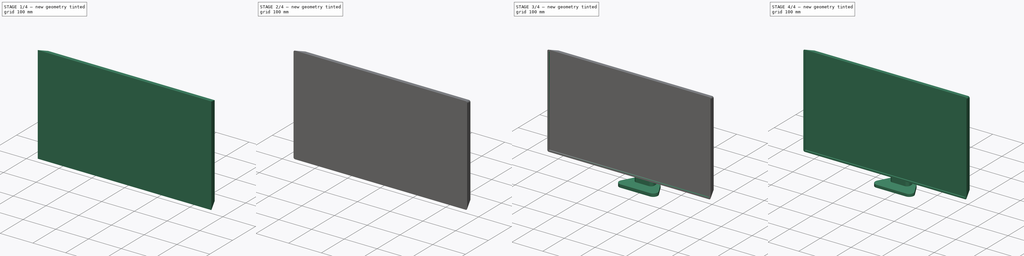
[diagram: build sequence overview — one tinted view per stage of 4, left to right]
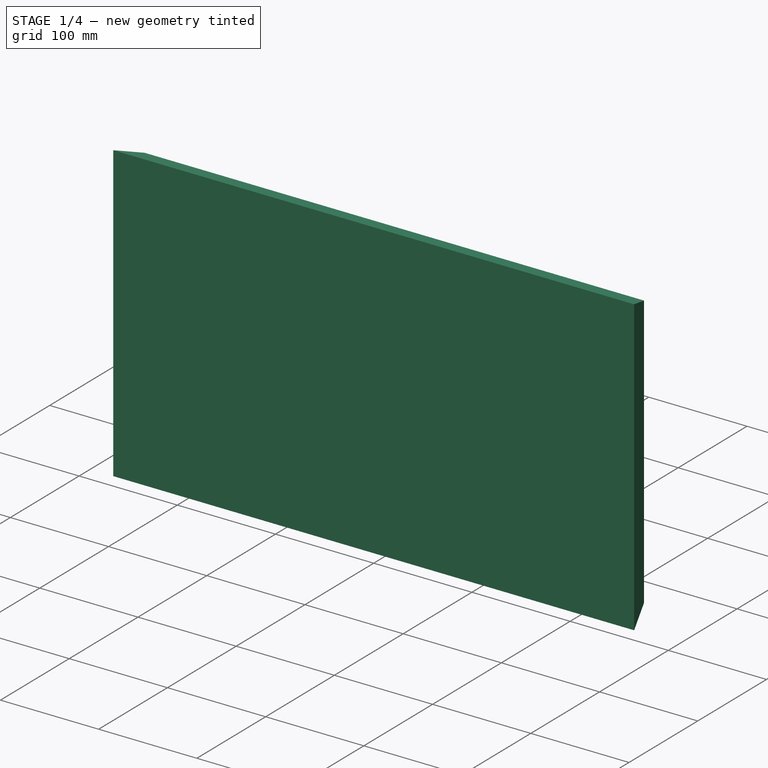
[diagram: stage 1 of 4 — iso view after this stage's code; geometry added in this stage tinted green]
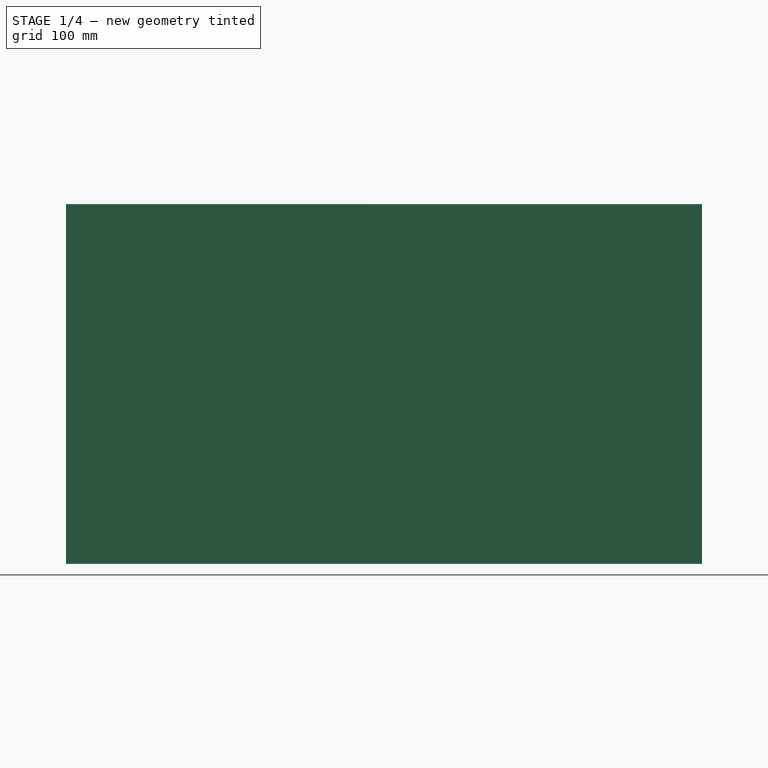
[diagram: stage 1 of 4 — front view after this stage's code; geometry added in this stage tinted green]
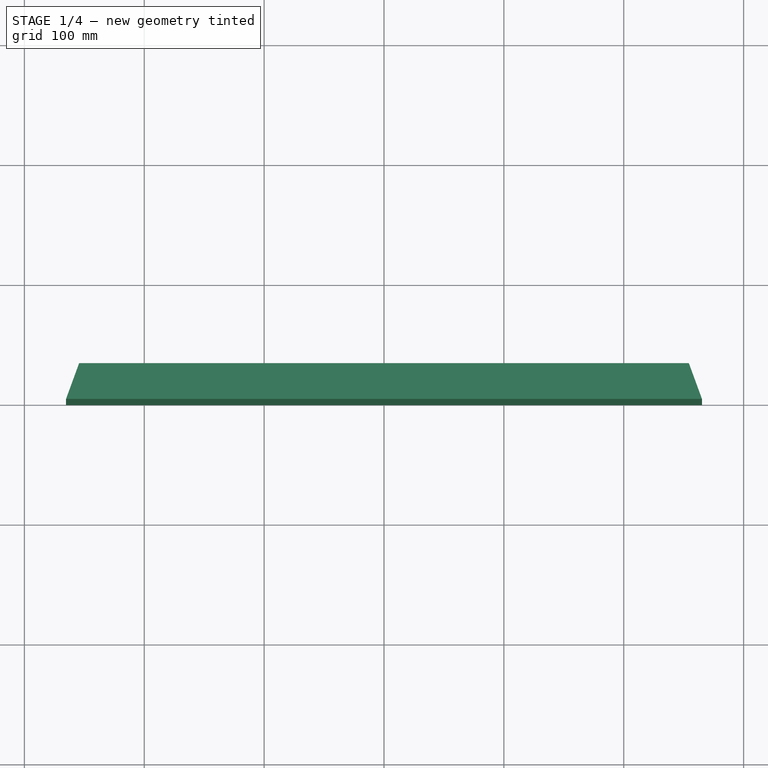
[diagram: stage 1 of 4 — top view after this stage's code; geometry added in this stage tinted green]
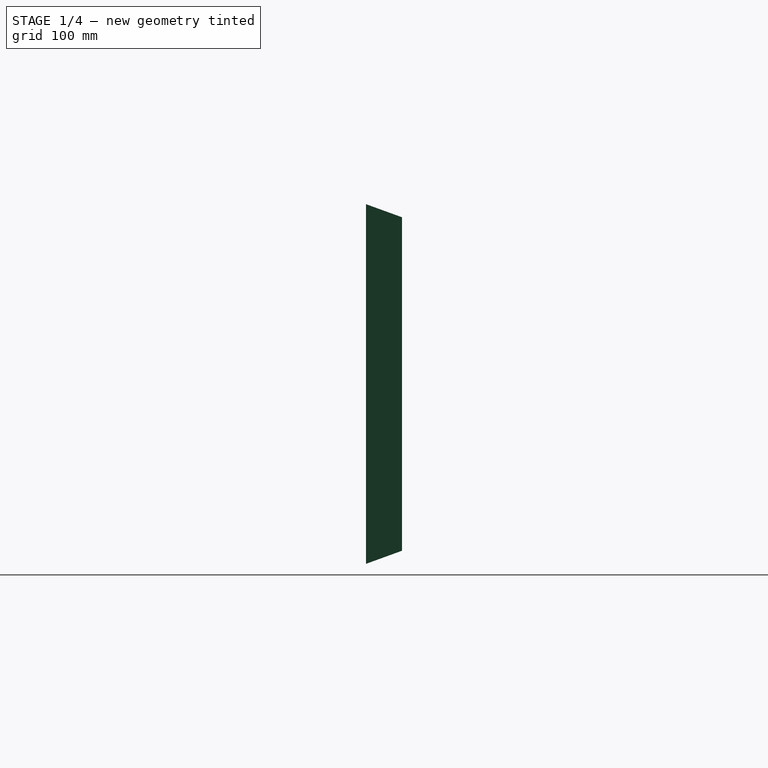
[diagram: stage 1 of 4 — right view after this stage's code; geometry added in this stage tinted green]
FCSTD DOCUMENT  (FreeCAD 1.0R39109 (Git))
Label: moniter
License: All rights reserved
LicenseURL: https://en.wikipedia.org/wiki/All_rights_reserved
objects: Sketcher::SketchObject×8, PartDesign::Pad×6, PartDesign::Body×3, PartDesign::Fillet×2, PartDesign::Pocket×2, PartDesign::ShapeBinder×2, Part::FeaturePython×2, Part::Fuse×1, App::Part×1
note: 54 computed .brp shape members not serialized (recipe doc carries the construction recipe); baked Part::Feature solids carry a one-line shape summary decoded from their .brp

FEATURE [Sketcher::SketchObject] Sketch001
  ArcFitTolerance = 1e-06
  AttachmentSupport = -> [Pad]
  FullyConstrained = false
  MakeInternals = false
  MapMode = 5
  Placement = pos=(0,0,10) rot=(0,0,1;0rad)
  sketch-geometry (10):
    g0: LineSegment StartX=-30.568 StartY=79.6606 StartZ=0 EndX=-30.568 EndY=73.3721 EndZ=0
    g1: LineSegment StartX=-20.568 StartY=63.3721 StartZ=0 EndX=20.568 EndY=63.3721 EndZ=0
    g2: LineSegment StartX=30.568 StartY=73.3721 StartZ=0 EndX=30.568 EndY=79.6619 EndZ=0
    g3: ArcOfCircle CenterX=0.00125496 CenterY=43.2656 CenterZ=0 NormalX=0 NormalY=0 NormalZ=1 AngleXU=0 Radius=52.8585 StartAngle=1.09908 EndAngle=2.04258
    g4: ArcOfCircle CenterX=-18.568 CenterY=79.6606 CenterZ=0 NormalX=0 NormalY=0 NormalZ=1 AngleXU=0 Radius=12 StartAngle=2.04258 EndAngle=3.14159
    g5: ArcOfCircle CenterX=18.568 CenterY=79.6619 CenterZ=0 NormalX=0 NormalY=0 NormalZ=1 AngleXU=0 Radius=12 StartAngle=1e-16 EndAngle=1.09908
    g6: ArcOfCircle CenterX=20.568 CenterY=73.3721 CenterZ=0 NormalX=0 NormalY=0 NormalZ=1 AngleXU=0 Radius=10 StartAngle=4.71239 EndAngle=6.28319
    g7: GeomPoint [constr] X=30.568 Y=63.3721 Z=0
    g8: ArcOfCircle CenterX=-20.568 CenterY=73.3721 CenterZ=0 NormalX=0 NormalY=0 NormalZ=1 AngleXU=0 Radius=10 StartAngle=3.14159 EndAngle=4.71239
    g9: GeomPoint [constr] X=-30.568 Y=63.3721 Z=0
  constraints (19):
    c: Vertical(g0)
    c: Vertical(g2)
    c: Symmetric(g9,g7,g-2)
    c: Tangent(g3,g4) = -1.5708
    c: Tangent(g0,g4) = -1.5708
    c: Tangent(g3,g5) = -1.5708
    c: Tangent(g2,g5) = -1.5708
    c: PointOnObject(g7,g2)
    c: PointOnObject(g7,g1)
    c: Tangent(g2,g6) = -1.5708
    c: Tangent(g1,g6) = -1.5708
    c: PointOnObject(g9,g0)
    c: PointOnObject(g9,g1)
    c: Tangent(g0,g8) = -1.5708
    c: Tangent(g1,g8) = -1.5708
    c: Equal(g8,g6)
    c: Equal(g5,g4)
    c: Radius(g8) = 10
    c: Radius(g4) = 12
FEATURE [Sketcher::SketchObject] Sketch002
  ArcFitTolerance = 1e-06
  AttachmentSupport = -> [XZ_Plane001]
  FullyConstrained = false
  MakeInternals = false
  MapMode = 5
  Placement = pos=(0,0,0) rot=(1,0,0;1.5708rad)
  sketch-geometry (4):
    g0: LineSegment StartX=-265.2 StartY=359.744 StartZ=0 EndX=-265.2 EndY=59.7441 EndZ=0
    g1: LineSegment StartX=-265.2 StartY=59.7441 StartZ=0 EndX=265.2 EndY=59.7441 EndZ=0
    g2: LineSegment StartX=265.2 StartY=59.7441 StartZ=0 EndX=265.2 EndY=359.744 EndZ=0
    g3: LineSegment StartX=265.2 StartY=359.744 StartZ=0 EndX=-265.2 EndY=359.744 EndZ=0
  constraints (10):
    c: Coincident(g0,g1)
    c: Coincident(g1,g2)
    c: Coincident(g2,g3)
    c: Coincident(g3,g0)
    c: Vertical(g0)
    c: Vertical(g2)
    c: Horizontal(g1)
    c: Distance(g0,g2) = 530.4
    c: Distance(g1,g3) = 300
    c: Symmetric(g2,g0,g-2)
FEATURE [PartDesign::Pad] Pad002
  Direction = (0,-1,2e-16)
  Length = 30
  Length2 = 10
  Placement = pos=(0,0,0) rot=(1,0,0;1.5708rad)
  Profile = -> Sketch002
  ReferenceAxis = -> Sketch002 [N_Axis]
  Refine = true
  Reversed = true
  Suppressed = false
  TaperAngle = -20
  Type = 0
FEATURE [PartDesign::ShapeBinder] CopyPocket001
  Placement = pos=(0,5,-2e-15) rot=(0,0,1;0rad)
  TraceSupport = false
FEATURE [Sketcher::SketchObject] Sketch007
  ArcFitTolerance = 1e-06
  AttachmentSupport = -> [CopyPocket001]
  ExternalGeometry = -> [CopyPocket001]
  FullyConstrained = true
  MakeInternals = false
  MapMode = 5
  Placement = pos=(0,5,-2e-15) rot=(1,0,0;1.5708rad)
  sketch-geometry (4):
    g0: LineSegment StartX=-260.502 StartY=355.046 StartZ=0 EndX=-260.502 EndY=64.4426 EndZ=0
    g1: LineSegment StartX=-260.502 StartY=64.4426 StartZ=0 EndX=260.502 EndY=64.4426 EndZ=0
    g2: LineSegment StartX=260.502 StartY=64.4426 StartZ=0 EndX=260.502 EndY=355.046 EndZ=0
    g3: LineSegment StartX=260.502 StartY=355.046 StartZ=0 EndX=-260.502 EndY=355.046 EndZ=0
  constraints (10):
    c: Coincident(g0,g1)
    c: Coincident(g1,g2)
    c: Coincident(g2,g3)
    c: Coincident(g3,g0)
    c: Vertical(g0)
    c: Vertical(g2)
    c: Horizontal(g1)
    c: Horizontal(g3)
    c: Coincident(g0,g-3)
    c: Coincident(g1,g-4)
FEATURE [PartDesign::Pad] Pad005
  Direction = (0,-1,2e-16)
  Length = 1
  Length2 = 10
  Placement = pos=(0,5,-2e-15) rot=(0,0,1;0rad)
  Profile = -> Sketch007
  ReferenceAxis = -> Sketch007 [N_Axis]
  Refine = true
  Suppressed = false
  Type = 0
FEATURE [Part::FeaturePython] Clone001  label="moniter_screen_clone"  # Draft clone (typed FeaturePython)
  AttacherType = Attacher::AttachEngine3D
  Fuse = false
  Objects = -> [Body002]
  Scale = (1,1,1)
FEATURE [App::Part] Part  label="moniter"
  Group = -> [Clone,Clone001]
  Origin = -> Origin004
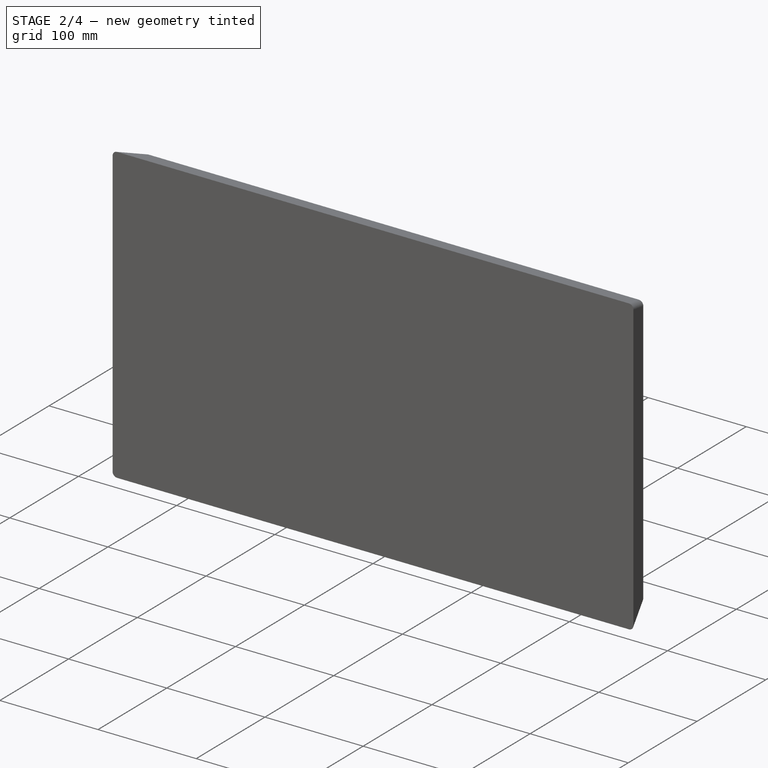
[diagram: stage 2 of 4 — iso view after this stage's code; geometry added in this stage tinted green]
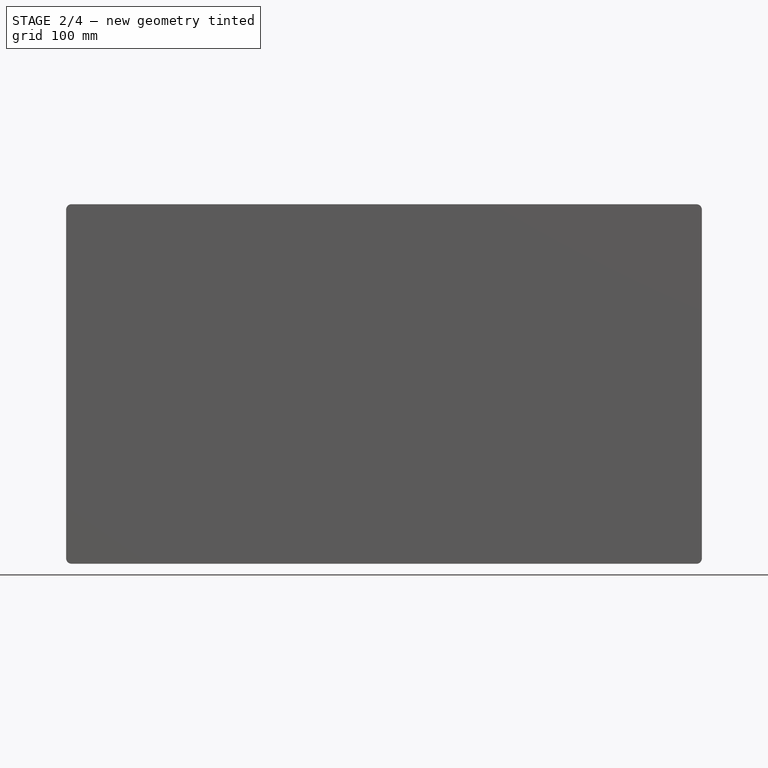
[diagram: stage 2 of 4 — front view after this stage's code; geometry added in this stage tinted green]
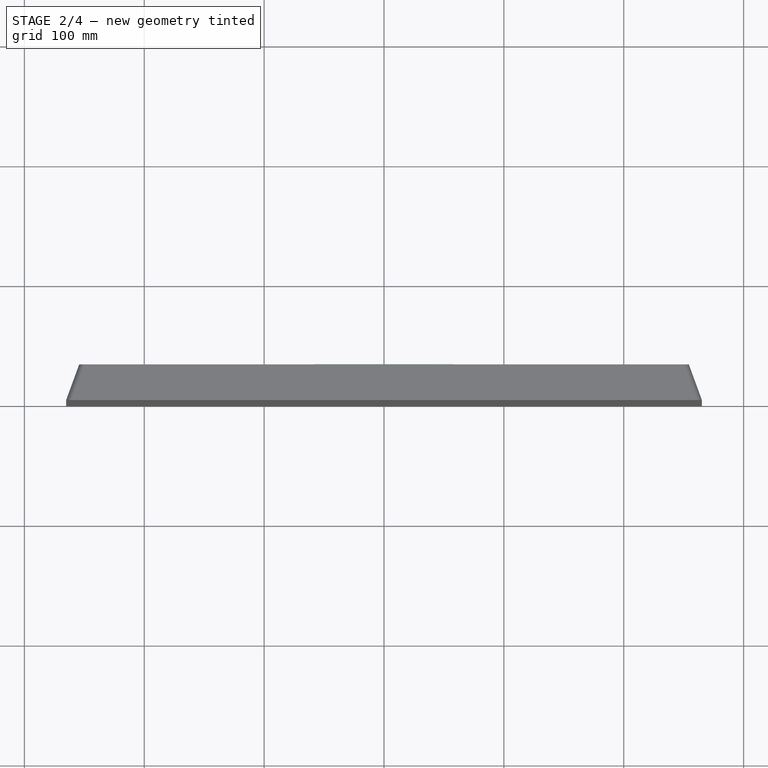
[diagram: stage 2 of 4 — top view after this stage's code; geometry added in this stage tinted green]
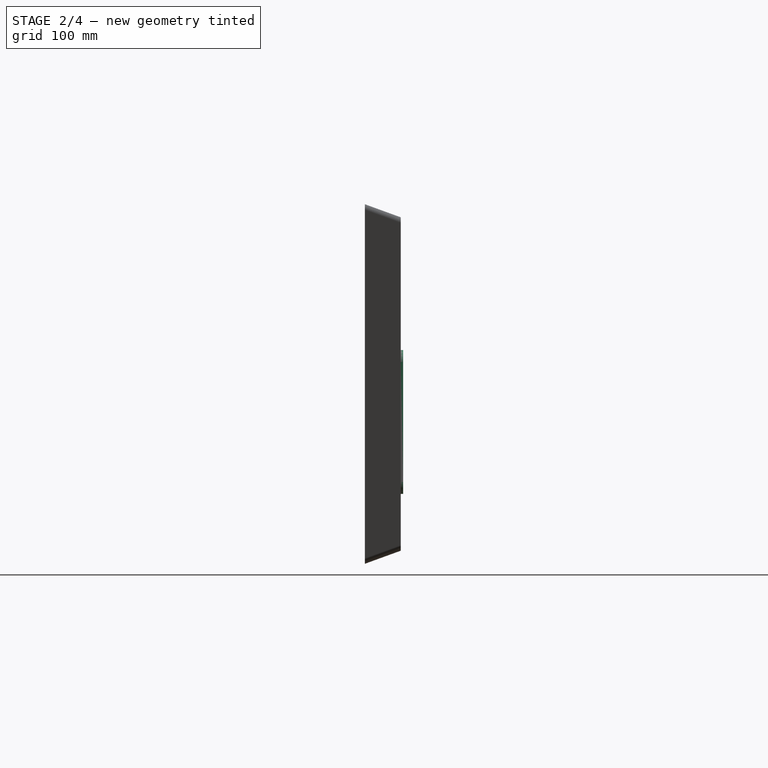
[diagram: stage 2 of 4 — right view after this stage's code; geometry added in this stage tinted green]
FEATURE [PartDesign::Fillet] Fillet
  Base = -> Pad002 [Edge6,Edge9,Edge4,Edge2]
  BaseFeature = -> Pad002
  Placement = pos=(0,0,0) rot=(1,0,0;1.5708rad)
  Radius = 5
  Refine = true
  SupportTransform = false
  Suppressed = false
  UseAllEdges = false
FEATURE [Sketcher::SketchObject] Sketch003
  ArcFitTolerance = 1e-06
  AttachmentSupport = -> [Fillet]
  FullyConstrained = false
  MakeInternals = false
  MapMode = 5
  Placement = pos=(0,30,-1.38e-14) rot=(-1,0,0;1.5708rad)
  sketch-geometry (4):
    g0: LineSegment StartX=190.861 StartY=-107.821 StartZ=0 EndX=190.861 EndY=-55.3481 EndZ=0
    g1: LineSegment StartX=190.861 StartY=-55.3481 StartZ=0 EndX=-190.861 EndY=-55.3481 EndZ=0
    g2: LineSegment StartX=-190.861 StartY=-55.3481 StartZ=0 EndX=-190.861 EndY=-107.821 EndZ=0
    g3: LineSegment StartX=-190.861 StartY=-107.821 StartZ=0 EndX=190.861 EndY=-107.821 EndZ=0
  constraints (8):
    c: Coincident(g0,g1)
    c: Coincident(g1,g2)
    c: Coincident(g2,g3)
    c: Coincident(g3,g0)
    c: Vertical(g0)
    c: Vertical(g2)
    c: Horizontal(g1)
    c: Symmetric(g2,g0,g-2)
FEATURE [PartDesign::Pocket] Pocket
  BaseFeature = -> Fillet
  Direction = (0,-1,-2e-16)
  Length = 20
  Length2 = 5
  Placement = pos=(0,0,0) rot=(1,0,0;1.5708rad)
  Profile = -> Sketch003
  ReferenceAxis = -> Sketch003 [N_Axis]
  Refine = true
  Suppressed = false
  Type = 0
FEATURE [Sketcher::SketchObject] Sketch004
  ArcFitTolerance = 1e-06
  AttachmentSupport = -> [Pocket]
  FullyConstrained = false
  MakeInternals = false
  MapMode = 5
  Placement = pos=(0,30,-1.38e-14) rot=(-1,0,0;1.5708rad)
  sketch-geometry (14):
    g0: LineSegment StartX=60 StartY=-228.06 StartZ=0 EndX=60 EndY=-128.06 EndZ=0
    g1: LineSegment StartX=50 StartY=-118.06 StartZ=0 EndX=-50 EndY=-118.06 EndZ=0
    g2: LineSegment StartX=-60 StartY=-128.06 StartZ=0 EndX=-60 EndY=-228.06 EndZ=0
    g3: LineSegment StartX=-50 StartY=-238.06 StartZ=0 EndX=50 EndY=-238.06 EndZ=0
    g4: ArcOfCircle CenterX=50 CenterY=-228.06 CenterZ=0 NormalX=0 NormalY=0 NormalZ=1 AngleXU=0 Radius=10 StartAngle=4.71239 EndAngle=6.28319
    g5: ArcOfCircle CenterX=50 CenterY=-128.06 CenterZ=0 NormalX=0 NormalY=0 NormalZ=1 AngleXU=0 Radius=10 StartAngle=1.1e-15 EndAngle=1.5708
    g6: ArcOfCircle CenterX=-50 CenterY=-128.06 CenterZ=0 NormalX=0 NormalY=0 NormalZ=1 AngleXU=0 Radius=10 StartAngle=1.5708 EndAngle=3.14159
    g7: ArcOfCircle CenterX=-50 CenterY=-228.06 CenterZ=0 NormalX=0 NormalY=0 NormalZ=1 AngleXU=0 Radius=10 StartAngle=3.14159 EndAngle=4.71239
    g8: GeomPoint [constr] X=60 Y=-238.06 Z=0
    g9: GeomPoint [constr] X=-60 Y=-118.06 Z=0
    g10: Circle CenterX=50 CenterY=-228.06 CenterZ=0 NormalX=0 NormalY=0 NormalZ=1 AngleXU=0 Radius=2
    g11: Circle CenterX=-50 CenterY=-228.06 CenterZ=0 NormalX=0 NormalY=0 NormalZ=1 AngleXU=0 Radius=2
    g12: Circle CenterX=50 CenterY=-128.06 CenterZ=0 NormalX=0 NormalY=0 NormalZ=1 AngleXU=0 Radius=2
    g13: Circle CenterX=-50 CenterY=-128.06 CenterZ=0 NormalX=0 NormalY=0 NormalZ=1 AngleXU=0 Radius=2
  constraints (30):
    c: Tangent(g0,g4) = -1.5708
    c: Tangent(g0,g5) = -1.5708
    c: Tangent(g1,g5) = -1.5708
    c: Tangent(g1,g6) = -1.5708
    c: Tangent(g2,g6) = -1.5708
    c: Tangent(g2,g7) = -1.5708
    c: Tangent(g3,g7) = -1.5708
    c: Tangent(g3,g4) = -1.5708
    c: Vertical(g0)
    c: Vertical(g2)
    c: Horizontal(g1)
    c: Horizontal(g3)
    c: Equal(g4,g5)
    c: Equal(g5,g6)
    c: PointOnObject(g8,g0)
    c: PointOnObject(g8,g3)
    c: PointOnObject(g9,g1)
    c: PointOnObject(g9,g2)
    c: DistanceX(g7,g4) = 100
    c: DistanceY(g7,g6) = 100
    c: Symmetric(g4,g7,g-2)
    c: Radius(g4) = 10
    c: Coincident(g10,g4)
    c: Coincident(g11,g7)
    c: Coincident(g12,g5)
    c: Coincident(g13,g6)
    c: Equal(g13,g11)
    c: Equal(g11,g10)
    c: Equal(g10,g12)
    c: Radius(g10) = 2
FEATURE [PartDesign::Pad] Pad003
  BaseFeature = -> Pocket
  Direction = (0,1,2e-16)
  Length = 2
  Length2 = 10
  Placement = pos=(0,0,0) rot=(1,0,0;1.5708rad)
  Profile = -> Sketch004
  ReferenceAxis = -> Sketch004 [N_Axis]
  Refine = true
  Suppressed = false
  Type = 0
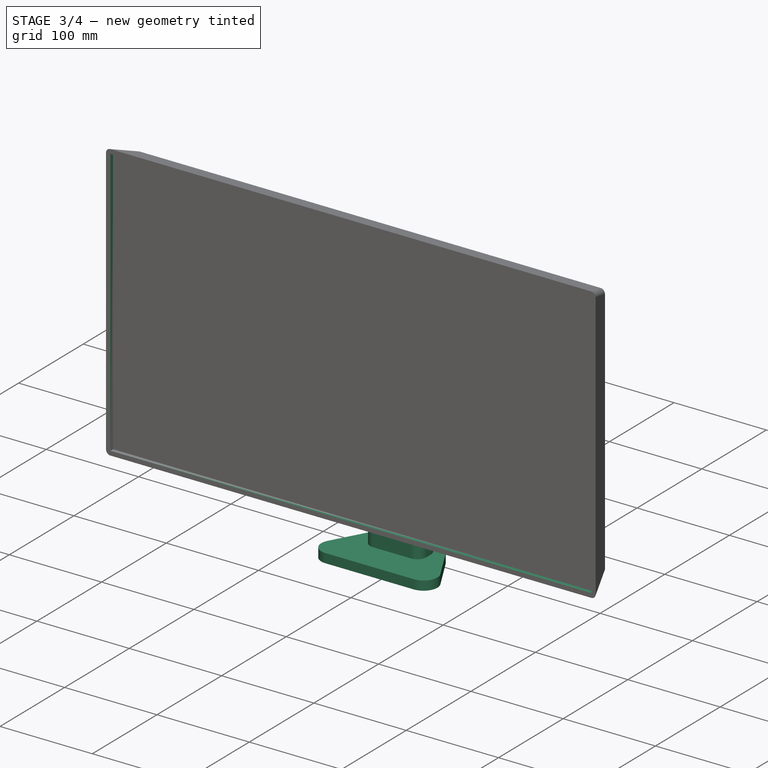
[diagram: stage 3 of 4 — iso view after this stage's code; geometry added in this stage tinted green]
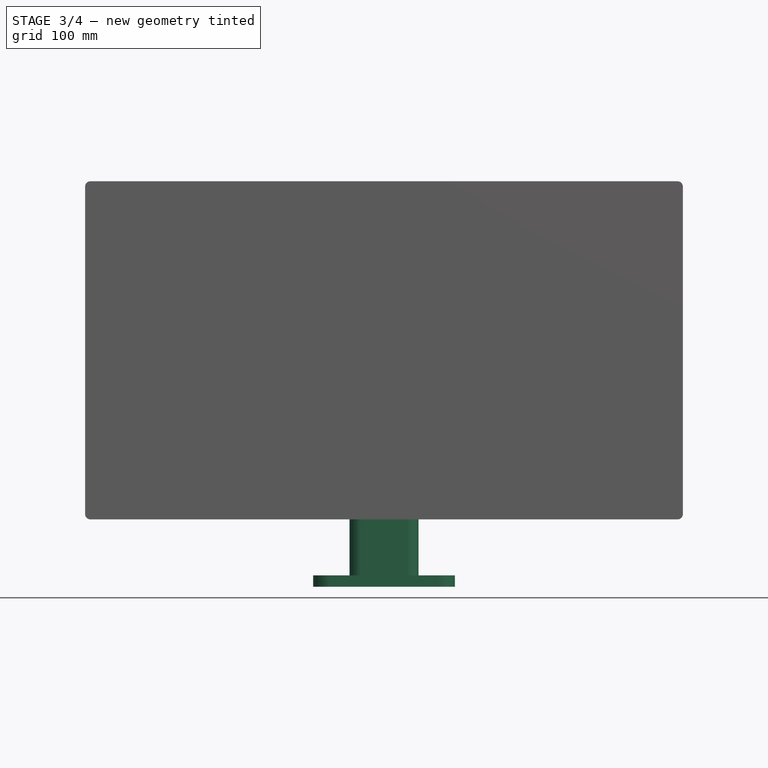
[diagram: stage 3 of 4 — front view after this stage's code; geometry added in this stage tinted green]
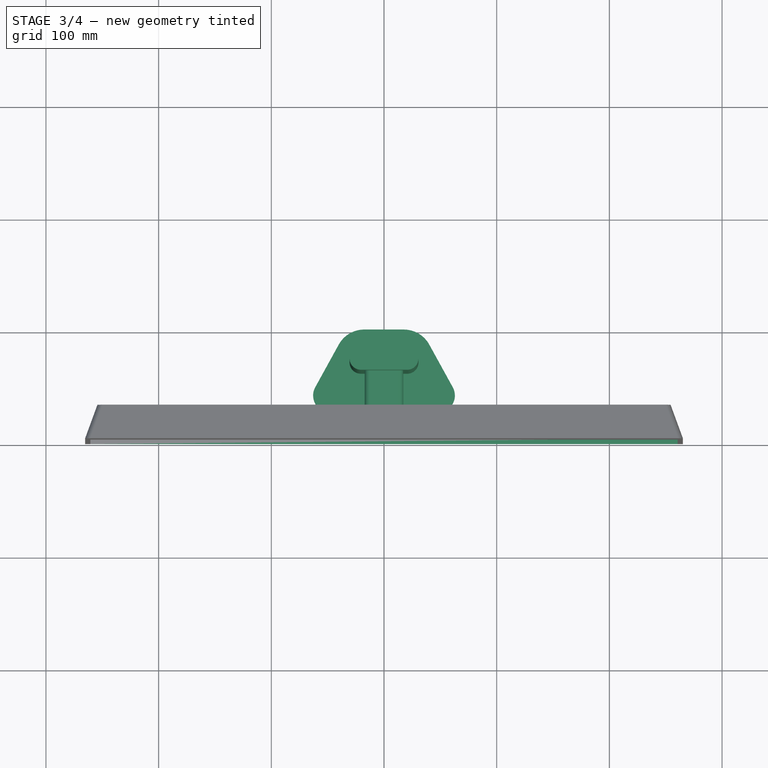
[diagram: stage 3 of 4 — top view after this stage's code; geometry added in this stage tinted green]
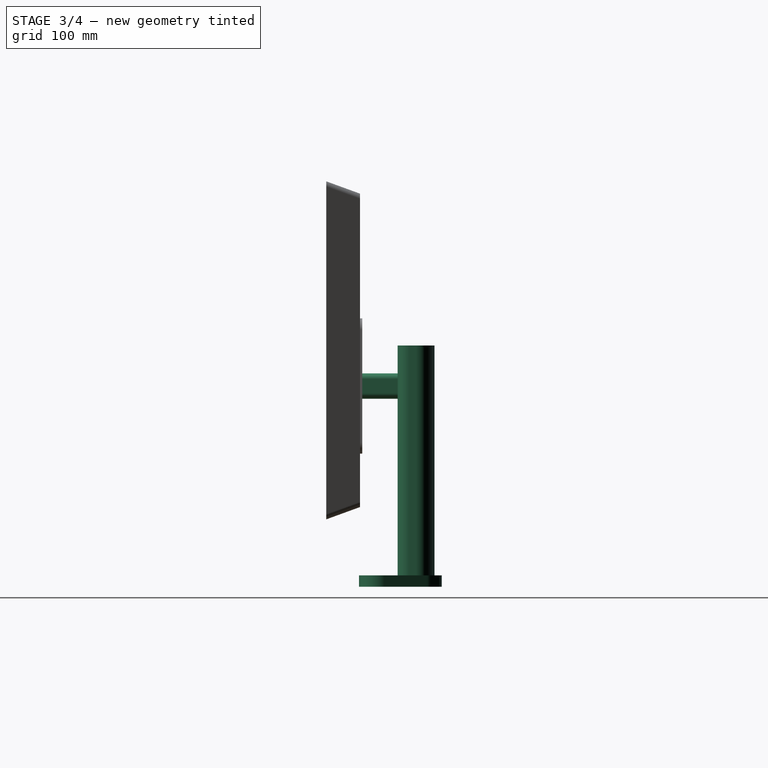
[diagram: stage 3 of 4 — right view after this stage's code; geometry added in this stage tinted green]
FEATURE [Sketcher::SketchObject] Sketch
  ArcFitTolerance = 1e-06
  AttachmentSupport = -> [XY_Plane]
  FullyConstrained = false
  MakeInternals = false
  MapMode = 5
  sketch-geometry (17):
    g0: LineSegment StartX=-47.8454 StartY=29.1131 StartZ=0 EndX=47.8454 EndY=29.1131 EndZ=0
    g1: LineSegment StartX=61.011 StartY=51.3954 StartZ=0 EndX=40.1625 EndY=89.247 EndZ=0
    g2: LineSegment StartX=17.5666 StartY=102.598 StartZ=0 EndX=-17.5666 EndY=102.598 EndZ=0
    g3: LineSegment StartX=-40.1625 StartY=89.247 StartZ=0 EndX=-61.011 EndY=51.3954 EndZ=0
    g4: GeomPoint [constr] X=0 Y=0 Z=0
    g5: ArcOfCircle CenterX=-17.5666 CenterY=76.8013 CenterZ=0 NormalX=0 NormalY=0 NormalZ=1 AngleXU=0 Radius=25.7967 StartAngle=1.5708 EndAngle=2.63814
    g6: GeomPoint [constr] X=-32.8089 Y=102.598 Z=0
    g7: ArcOfCircle CenterX=17.5666 CenterY=76.8013 CenterZ=0 NormalX=0 NormalY=0 NormalZ=1 AngleXU=0 Radius=25.7967 StartAngle=0.503453 EndAngle=1.5708
    g8: GeomPoint [constr] X=32.8089 Y=102.598 Z=0
    g9: ArcOfCircle CenterX=47.8454 CenterY=44.1438 CenterZ=0 NormalX=0 NormalY=0 NormalZ=1 AngleXU=0 Radius=15.0306 StartAngle=4.71239 EndAngle=6.78664
    g10: GeomPoint [constr] X=73.284 Y=29.1131 Z=0
    g11: ArcOfCircle CenterX=-47.8454 CenterY=44.1438 CenterZ=0 NormalX=0 NormalY=0 NormalZ=1 AngleXU=0 Radius=15.0306 StartAngle=2.63814 EndAngle=4.71239
    g12: GeomPoint [constr] X=-73.284 Y=29.1131 Z=0
    g13: LineSegment [constr] StartX=-17.5666 StartY=76.8013 StartZ=0 EndX=47.8454 EndY=44.1438 EndZ=0
    g14: LineSegment [constr] StartX=17.5666 StartY=76.8013 StartZ=0 EndX=-47.8454 EndY=44.1438 EndZ=0
    g15: LineSegment [constr] StartX=17.5666 StartY=76.8013 StartZ=0 EndX=47.8454 EndY=44.1438 EndZ=0
    g16: LineSegment [constr] StartX=-17.5666 StartY=76.8013 StartZ=0 EndX=-47.8454 EndY=44.1438 EndZ=0
  constraints (30):
    c: Horizontal(g0)
    c: Horizontal(g2)
    c: Coincident(g4,g-1)
    c: PointOnObject(g6,g2)
    c: PointOnObject(g6,g3)
    c: Tangent(g2,g5) = -1.5708
    c: Tangent(g3,g5) = -1.5708
    c: PointOnObject(g8,g2)
    c: PointOnObject(g8,g1)
    c: Tangent(g2,g7) = -1.5708
    c: Tangent(g1,g7) = -1.5708
    c: PointOnObject(g10,g1)
    c: PointOnObject(g10,g0)
    c: Tangent(g1,g9) = -1.5708
    c: Tangent(g0,g9) = -1.5708
    c: PointOnObject(g12,g3)
    c: PointOnObject(g12,g0)
    c: Tangent(g3,g11) = -1.5708
    c: Tangent(g0,g11) = -1.5708
    c: Equal(g11,g9)
    c: Coincident(g13,g5)
    c: Coincident(g13,g9)
    c: Coincident(g14,g7)
    c: Coincident(g14,g11)
    c: Equal(g14,g13)
    c: Symmetric(g7,g5,g-2)
    c: Coincident(g15,g7)
    c: Coincident(g15,g9)
    c: Coincident(g16,g5)
    c: Coincident(g16,g11)
FEATURE [PartDesign::Pad] Pad
  Direction = (0,0,1)
  Length = 10
  Length2 = 10
  Profile = -> Sketch
  ReferenceAxis = -> Sketch [N_Axis]
  Refine = true
  Suppressed = false
  Type = 0
FEATURE [PartDesign::Pad] Pad001
  BaseFeature = -> Pad
  Direction = (0,0,1)
  Length = 204
  Length2 = 10
  Profile = -> Sketch001
  ReferenceAxis = -> Sketch001 [N_Axis]
  Refine = true
  Suppressed = false
  Type = 0
FEATURE [PartDesign::ShapeBinder] CopyPad003
  Placement = pos=(0,2,4e-16) rot=(0,0,1;0rad)
  TraceSupport = false
FEATURE [Sketcher::SketchObject] Sketch005
  ArcFitTolerance = 1e-06
  AttachmentSupport = -> [CopyPad003]
  ExternalGeometry = -> [CopyPad003]
  FullyConstrained = false
  MakeInternals = false
  MapMode = 5
  Placement = pos=(0,32,7.3e-15) rot=(0,0.707107,0.707107;3.14159rad)
  sketch-geometry (12):
    g0: LineSegment [constr] StartX=-60 StartY=228.06 StartZ=0 EndX=60 EndY=128.06 EndZ=0
    g1: LineSegment [constr] StartX=60 StartY=228.06 StartZ=0 EndX=-7.1e-15 EndY=178.06 EndZ=0
    g2: LineSegment StartX=-17.106 StartY=184.304 StartZ=0 EndX=-17.106 EndY=171.815 EndZ=0
    g3: LineSegment StartX=-12.1108 StartY=166.82 StartZ=0 EndX=12.1108 EndY=166.82 EndZ=0
    g4: LineSegment StartX=17.106 StartY=171.815 StartZ=0 EndX=17.106 EndY=184.304 EndZ=0
    g5: LineSegment StartX=12.1108 StartY=189.299 StartZ=0 EndX=-12.1108 EndY=189.299 EndZ=0
    g6: ArcOfCircle CenterX=-12.1108 CenterY=184.304 CenterZ=0 NormalX=0 NormalY=0 NormalZ=1 AngleXU=0 Radius=4.99514 StartAngle=1.5708 EndAngle=3.14159
    g7: ArcOfCircle CenterX=-12.1108 CenterY=171.815 CenterZ=0 NormalX=0 NormalY=0 NormalZ=1 AngleXU=0 Radius=4.99514 StartAngle=3.14159 EndAngle=4.71239
    g8: ArcOfCircle CenterX=12.1108 CenterY=171.815 CenterZ=0 NormalX=0 NormalY=0 NormalZ=1 AngleXU=0 Radius=4.99514 StartAngle=4.71239 EndAngle=6.28319
    g9: ArcOfCircle CenterX=12.1108 CenterY=184.304 CenterZ=0 NormalX=0 NormalY=0 NormalZ=1 AngleXU=0 Radius=4.99514 StartAngle=8e-16 EndAngle=1.5708
    g10: GeomPoint [constr] X=-17.106 Y=189.299 Z=0
    g11: GeomPoint [constr] X=17.106 Y=166.82 Z=0
  constraints (23):
    c: Coincident(g0,g-4)
    c: Coincident(g0,g-5)
    c: Coincident(g1,g-4)
    c: Symmetric(g0,g0,g1)
    c: Tangent(g2,g6) = -1.5708
    c: Tangent(g2,g7) = -1.5708
    c: Tangent(g3,g7) = -1.5708
    c: Tangent(g3,g8) = -1.5708
    c: Tangent(g4,g8) = -1.5708
    c: Tangent(g4,g9) = -1.5708
    c: Tangent(g5,g9) = -1.5708
    c: Tangent(g5,g6) = -1.5708
    c: Vertical(g2)
    c: Vertical(g4)
    c: Horizontal(g3)
    c: Horizontal(g5)
    c: Equal(g7,g8)
    c: PointOnObject(g10,g2)
    c: PointOnObject(g10,g5)
    c: PointOnObject(g11,g3)
    c: PointOnObject(g11,g4)
    c: Symmetric(g9,g6,g-2)
    c: Symmetric(g9,g7,g1)
FEATURE [PartDesign::Pad] Pad004
  BaseFeature = -> Pad001
  Direction = (0,1,-2e-16)
  Length = 10
  Length2 = 10
  Profile = -> Sketch005
  ReferenceAxis = -> Sketch005 [N_Axis]
  Refine = true
  Suppressed = false
  Type = 3
  UpToFace = -> Pad001 [Face13]
FEATURE [PartDesign::Body] Body
  AllowCompound = false
  Group = -> [Sketch,Pad,Sketch001,Pad001,CopyPad003,Sketch005,Pad004,Fillet001]
  Origin = -> Origin
  Tip = -> Fillet001
FEATURE [Sketcher::SketchObject] Sketch006
  ArcFitTolerance = 1e-06
  AttachmentSupport = -> [Pad003]
  ExternalGeometry = -> [Pad003]
  FullyConstrained = true
  MakeInternals = false
  MapMode = 5
  Placement = pos=(0,1.5e-15,0) rot=(1,0,0;1.5708rad)
  sketch-geometry (9):
    g0: LineSegment StartX=260.502 StartY=64.4426 StartZ=0 EndX=260.502 EndY=355.046 EndZ=0
    g1: LineSegment StartX=260.502 StartY=355.046 StartZ=0 EndX=-260.502 EndY=355.046 EndZ=0
    g2: LineSegment StartX=-260.502 StartY=355.046 StartZ=0 EndX=-260.502 EndY=64.4426 EndZ=0
    g3: LineSegment StartX=-260.502 StartY=64.4426 StartZ=0 EndX=260.502 EndY=64.4426 EndZ=0
    g4: GeomPoint [constr] X=0 Y=209.744 Z=0
    g5: LineSegment [constr] StartX=-260.502 StartY=359.744 StartZ=0 EndX=-260.502 EndY=355.046 EndZ=0
    g6: LineSegment [constr] StartX=260.502 StartY=64.4426 StartZ=0 EndX=260.502 EndY=59.7441 EndZ=0
    g7: LineSegment [constr] StartX=265.2 StartY=64.4426 StartZ=0 EndX=260.502 EndY=64.4426 EndZ=0
    g8: LineSegment [constr] StartX=-265.2 StartY=355.046 StartZ=0 EndX=-260.502 EndY=355.046 EndZ=0
  constraints (21):
    c: Coincident(g0,g1)
    c: Coincident(g1,g2)
    c: Coincident(g2,g3)
    c: Coincident(g3,g0)
    c: Vertical(g0)
    c: Vertical(g2)
    c: Horizontal(g1)
    c: Horizontal(g3)
    c: Symmetric(g2,g0,g4)
    c: PointOnObject(g4,g-2)
    c: Coincident(g5,g-3)
    c: Coincident(g5,g1)
    c: Coincident(g6,g0)
    c: Coincident(g6,g-6)
    c: Vertical(g6)
    c: Equal(g5,g6)
    c: Coincident(g7,g-4)
    c: Coincident(g7,g0)
    c: Coincident(g8,g-5)
    c: Coincident(g8,g1)
    c: Equal(g8,g5)
FEATURE [PartDesign::Pocket] Pocket001
  BaseFeature = -> Pad003
  Direction = (0,1,-2e-16)
  Length = 5
  Length2 = 5
  Placement = pos=(0,0,0) rot=(1,0,0;1.5708rad)
  Profile = -> Sketch006
  ReferenceAxis = -> Sketch006 [N_Axis]
  Refine = true
  Suppressed = false
  Type = 0
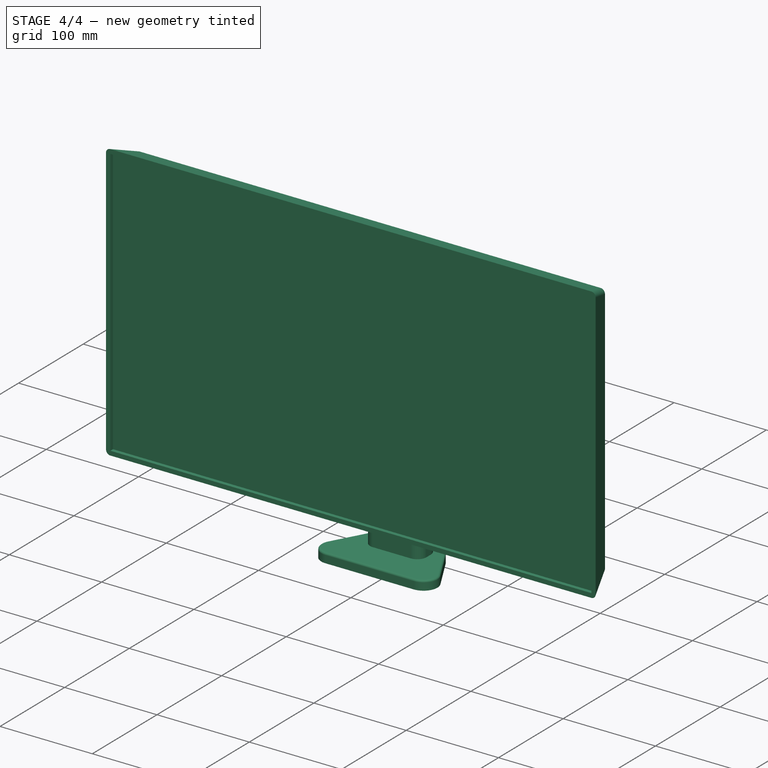
[diagram: stage 4 of 4 — iso view after this stage's code; geometry added in this stage tinted green]
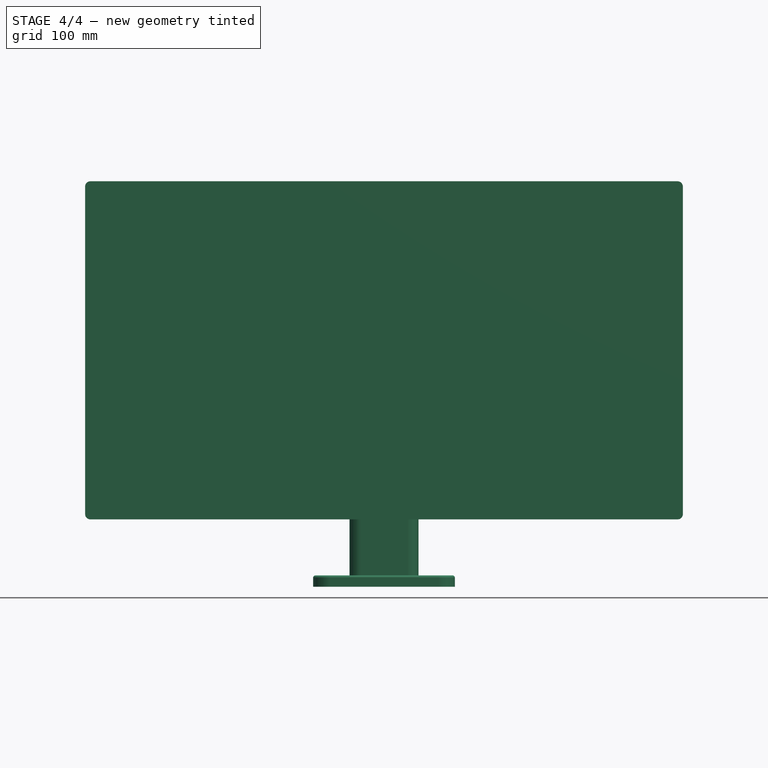
[diagram: stage 4 of 4 — front view after this stage's code; geometry added in this stage tinted green]
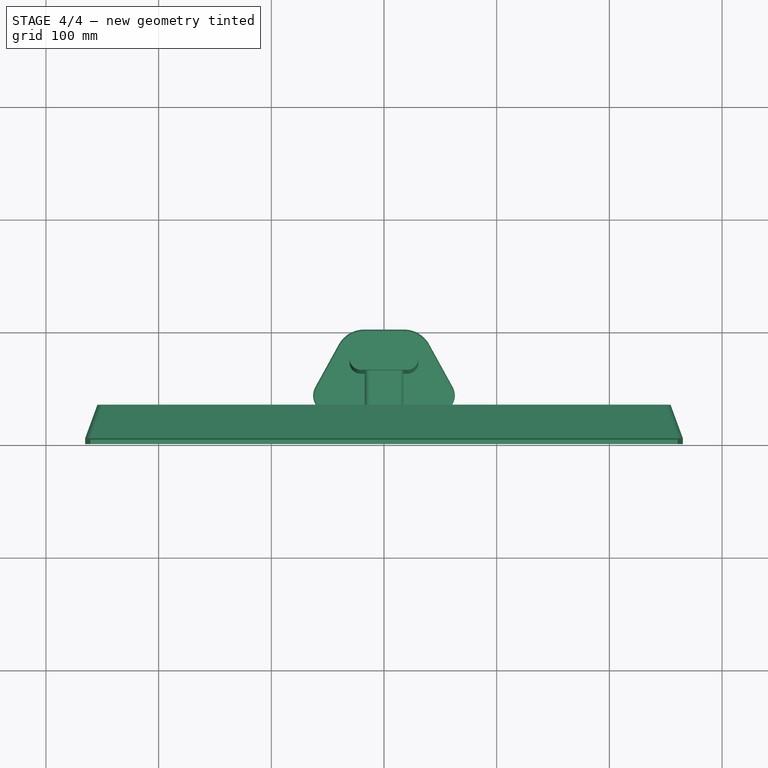
[diagram: stage 4 of 4 — top view after this stage's code; geometry added in this stage tinted green]
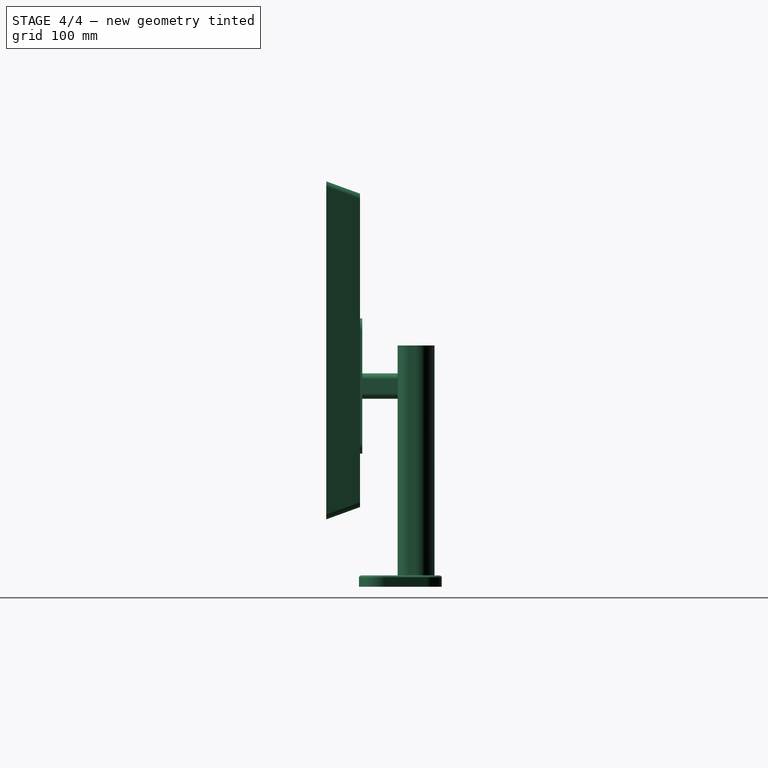
[diagram: stage 4 of 4 — right view after this stage's code; geometry added in this stage tinted green]
FEATURE [PartDesign::Fillet] Fillet001
  Base = -> Pad004 [Edge10]
  BaseFeature = -> Pad004
  Radius = 2
  Refine = true
  SupportTransform = false
  Suppressed = false
  UseAllEdges = false
FEATURE [PartDesign::Body] Body001
  AllowCompound = false
  Group = -> [Sketch002,Pad002,Fillet,Sketch003,Pocket,Sketch004,Pad003,Sketch006,Pocket001]
  Origin = -> Origin001
  Tip = -> Pocket001
FEATURE [Part::Fuse] Fusion  label="moniter_body"
  Base = -> Body
  Refine = true
  Tool = -> Body001
FEATURE [PartDesign::Body] Body002  label="moniter_screen"
  AllowCompound = false
  Group = -> [CopyPocket001,Sketch007,Pad005]
  Origin = -> Origin002
  Tip = -> Pad005
FEATURE [Part::FeaturePython] Clone  label="moniter_body_clone"  # Draft clone (typed FeaturePython)
  AttacherType = Attacher::AttachEngine3D
  Fuse = false
  Objects = -> [Fusion]
  Scale = (1,1,1)
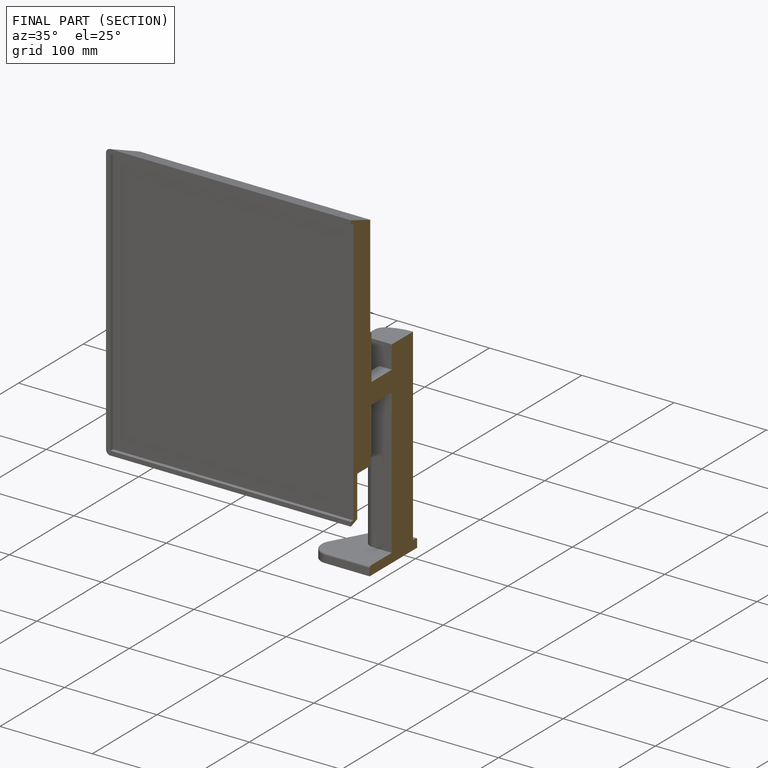
[diagram: finished part — half-section view (interior)]
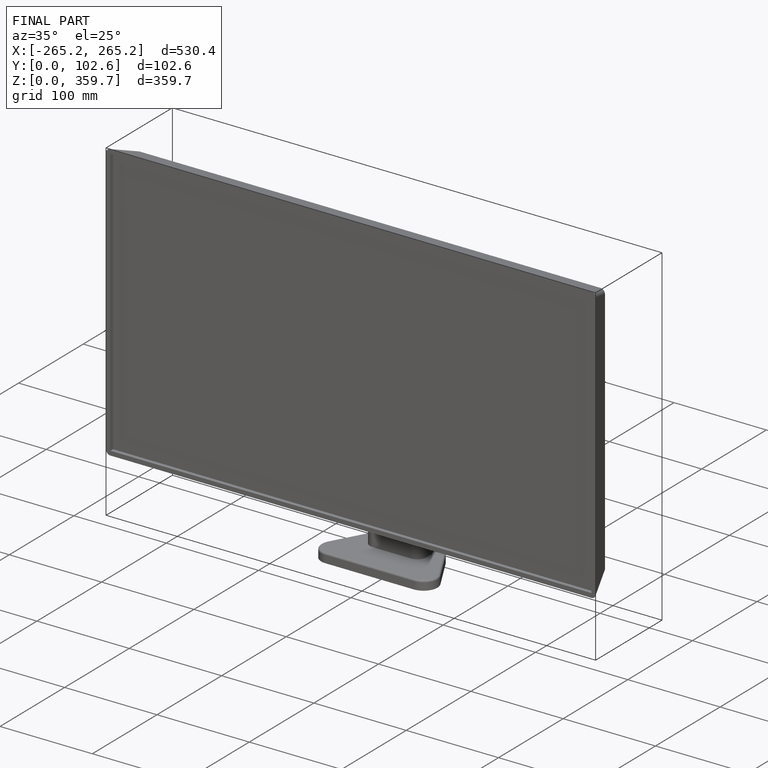
[diagram: finished part — iso view with bounding-box wireframe]
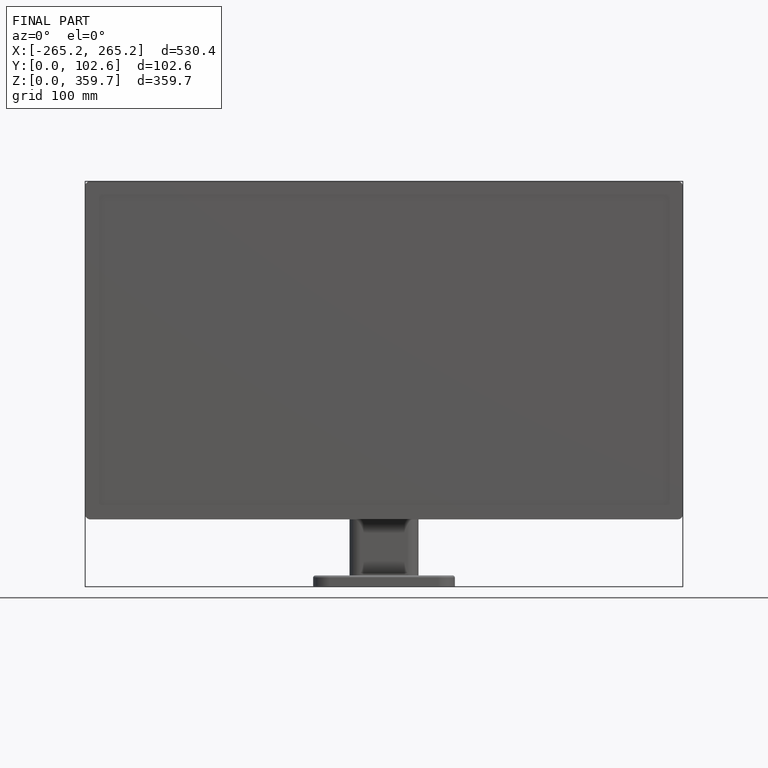
[diagram: finished part — front view with bounding-box wireframe]
